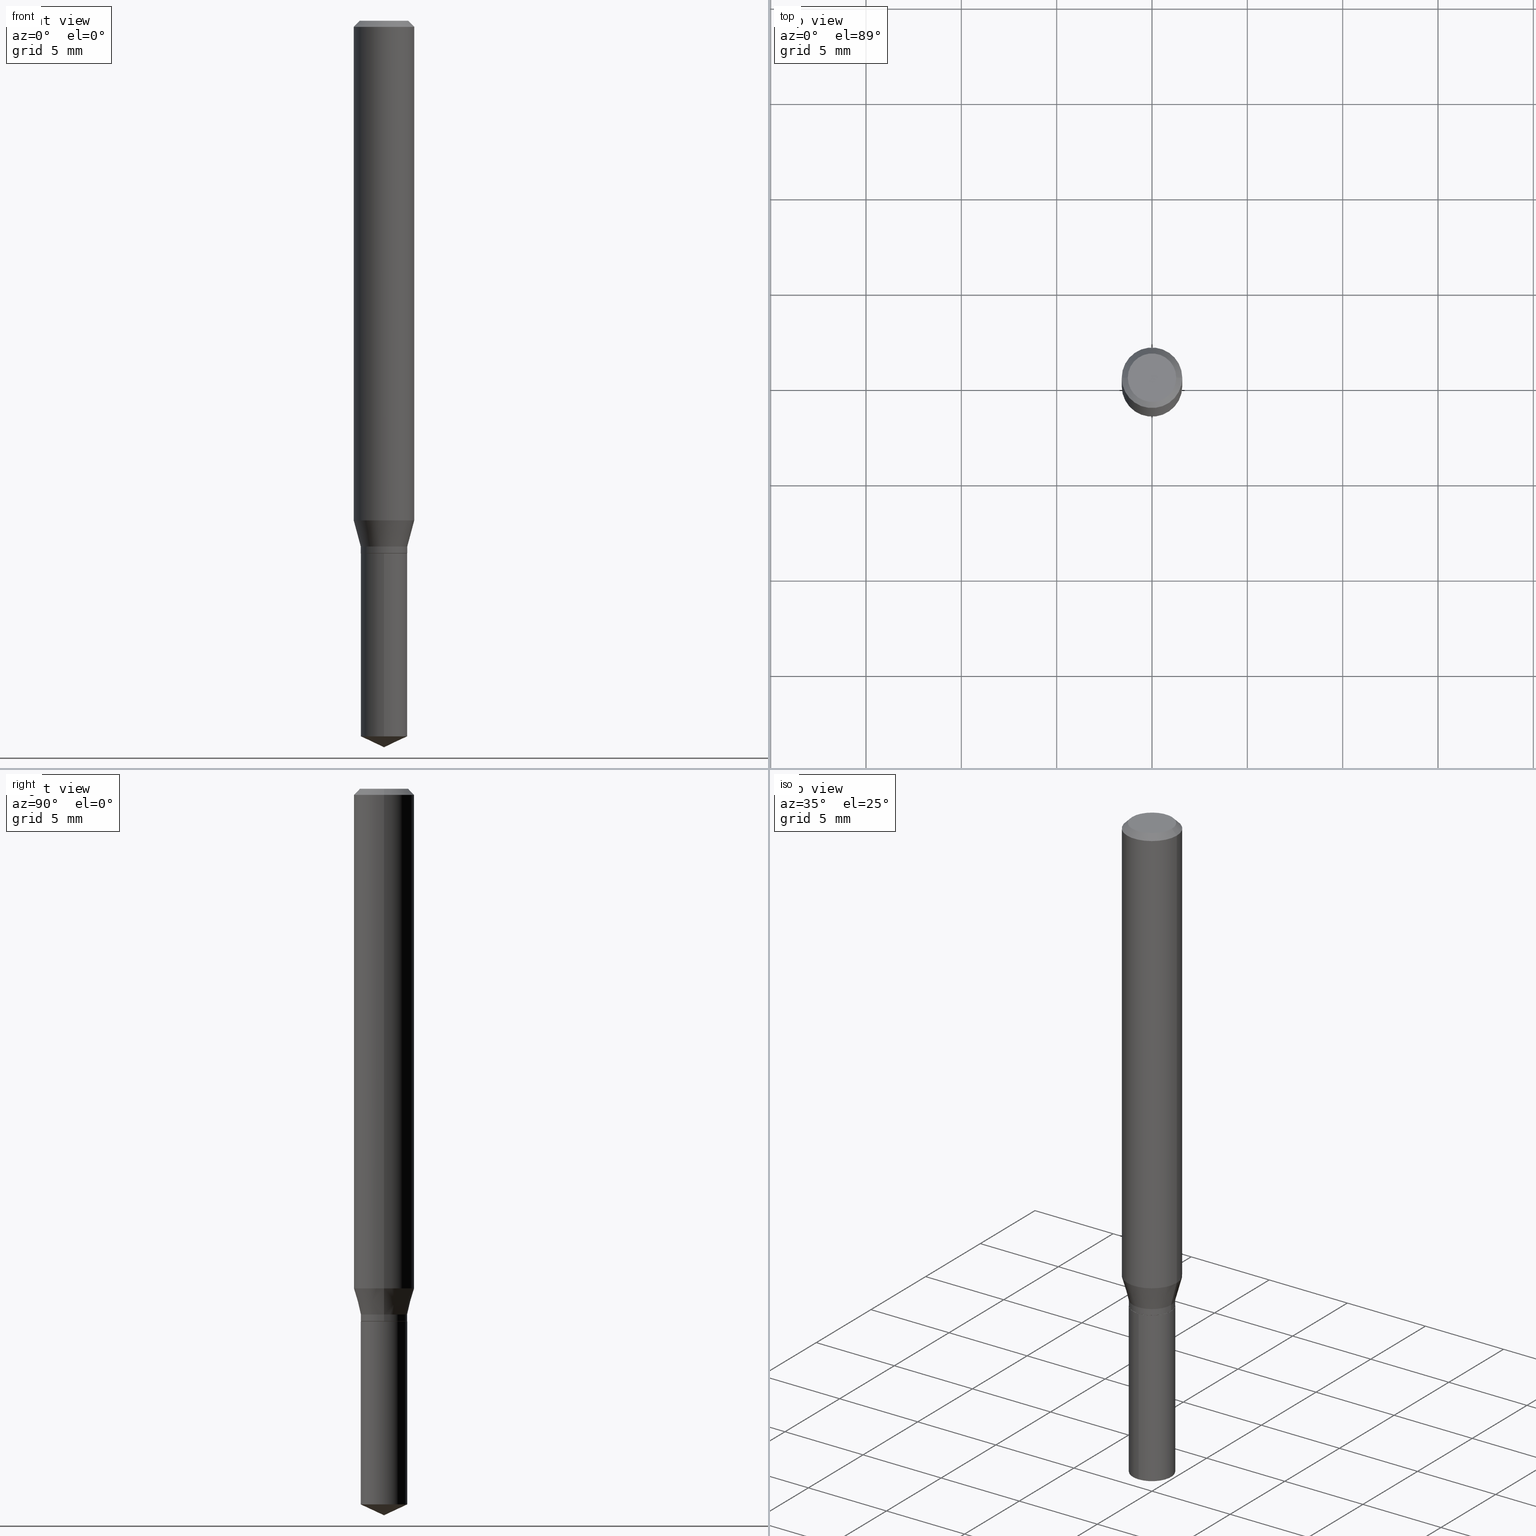
[diagram: canonical four-view strip — front | top / right | iso, engineering-drawing reading convention]
A machine part, canonical four-view strip (front | top / right | iso — engineering-drawing reading convention). The complete STEP part file that produces these views, byte-faithful:
ISO-10303-21;
HEADER;
FILE_DESCRIPTION (( 'STEP AP203' ),
    '1' );
FILE_NAME ('07372.STEP',
    '2024-04-23T20:49:41',
    ( '' ),
    ( '' ),
    'SwSTEP 2.0',
    'SolidWorks 2023',
    '' );
FILE_SCHEMA (( 'CONFIG_CONTROL_DESIGN' ));
ENDSEC;

DATA;
#1 = COORDINATED_UNIVERSAL_TIME_OFFSET ( 5, 0, .BEHIND. ) ;
#2 = CARTESIAN_POINT ( 'NONE',  ( 2.688792952400557567E-29, -3.838883732058038598E-15, -1.099499999999999922 ) ) ;
#3 = PERSON_AND_ORGANIZATION_ROLE ( 'creator' ) ;
#4 = DIRECTION ( 'NONE',  ( 1.000000000000000000, -6.982962677686266711E-15, 0.000000000000000000 ) ) ;
#5 = VECTOR ( 'NONE', #259, 39.37007874015748854 ) ;
#6 = CARTESIAN_POINT ( 'NONE',  ( -0.04800000000000000100, -3.449291628283270434E-15, -1.085600000000000120 ) ) ;
#7 = APPLICATION_PROTOCOL_DEFINITION ( 'international standard', 'config_control_design', 1994, #440 ) ;
#8 = ADVANCED_FACE ( 'NONE', ( #216 ), #410, .T. ) ;
#9 = AXIS2_PLACEMENT_3D ( 'NONE', #21, #396, #323 ) ;
#10 = ORIENTED_EDGE ( 'NONE', *, *, #348, .T. ) ;
#11 = VERTEX_POINT ( 'NONE', #244 ) ;
#12 = DIRECTION ( 'NONE',  ( -2.445399690415121530E-29, 3.491580316559632610E-15, 1.000000000000000000 ) ) ;
#13 = VECTOR ( 'NONE', #78, 39.37007874015747433 ) ;
#14 = APPROVAL_PERSON_ORGANIZATION ( #190, #386, #301 ) ;
#15 = CC_DESIGN_DATE_AND_TIME_ASSIGNMENT ( #111, #338, ( #206 ) ) ;
#16 = CONICAL_SURFACE ( 'NONE', #477, 84.42940631927483253, 1.134464013796318227 ) ;
#17 = CARTESIAN_POINT ( 'NONE',  ( 0.06250000000000012490, -4.037846715425012745E-15, -1.031485263290250920 ) ) ;
#18 = ORIENTED_EDGE ( 'NONE', *, *, #390, .T. ) ;
#19 = MANIFOLD_SOLID_BREP ( 'Body-Move/Copy2[1]', #355 ) ;
#20 = ORIENTED_EDGE ( 'NONE', *, *, #460, .T. ) ;
#21 = CARTESIAN_POINT ( 'NONE',  ( 0.000000000000000000, 0.000000000000000000, 0.000000000000000000 ) ) ;
#22 = ORIENTED_EDGE ( 'NONE', *, *, #183, .T. ) ;
#23 = ADVANCED_FACE ( 'NONE', ( #366 ), #176, .T. ) ;
#24 = CARTESIAN_POINT ( 'NONE',  ( 2.654800935994584637E-29, -3.790352141448118432E-15, -1.085600000000000120 ) ) ;
#25 = CARTESIAN_POINT ( 'NONE',  ( 0.06250000000000000000, -4.800786840909313294E-16, -0.01250000000000009090 ) ) ;
#26 = EDGE_LOOP ( 'NONE', ( #328, #255, #465, #204 ) ) ;
#27 = DIRECTION ( 'NONE',  ( 1.000000000000000000, -6.982962677686266711E-15, 0.000000000000000000 ) ) ;
#28 = AXIS2_PLACEMENT_3D ( 'NONE', #327, #377, #339 ) ;
#29 = DIRECTION ( 'NONE',  ( -2.445399690415121530E-29, 3.491580316559632610E-15, 1.000000000000000000 ) ) ;
#30 = ORIENTED_EDGE ( 'NONE', *, *, #319, .F. ) ;
#31 = DIRECTION ( 'NONE',  ( -2.445468806185136877E-29, 3.491481338843145188E-15, 1.000000000000000000 ) ) ;
#32 = DIRECTION ( 'NONE',  ( -6.982962677686267499E-15, -1.000000000000000000, 3.520397390770433360E-15 ) ) ;
#33 = ADVANCED_FACE ( 'NONE', ( #252 ), #189, .T. ) ;
#34 = PERSON_AND_ORGANIZATION ( #186, #94 ) ;
#35 = PLANE ( 'NONE',  #347 ) ;
#36 = DATE_AND_TIME ( #79, #205 ) ;
#37 = DIRECTION ( 'NONE',  ( 1.000000000000000000, -6.982962677686266711E-15, 4.876176775795935793E-29 ) ) ;
#38 = APPROVAL_STATUS ( 'not_yet_approved' ) ;
#39 = EDGE_CURVE ( 'NONE', #239, #57, #65, .T. ) ;
#40 = DIRECTION ( 'NONE',  ( 1.000000000000000000, -6.982962677686273021E-15, 0.000000000000000000 ) ) ;
#41 = CLOSED_SHELL ( 'NONE', ( #434, #140, #170, #310, #414, #23, #48, #107, #258, #89, #234, #147 ) ) ;
#42 = CIRCLE ( 'NONE', #219, 0.04800000000000000100 ) ;
#43 = CIRCLE ( 'NONE', #237, 0.04800000000000000100 ) ;
#44 = EDGE_LOOP ( 'NONE', ( #157, #278, #441, #96 ) ) ;
#45 = CARTESIAN_POINT ( 'NONE',  ( 3.893286209682126177E-47, -5.558580879666067980E-33, -1.592040838891559689E-18 ) ) ;
#46 = CYLINDRICAL_SURFACE ( 'NONE', #117, 0.04800000000000000100 ) ;
#47 = ORIENTED_EDGE ( 'NONE', *, *, #266, .F. ) ;
#48 = ADVANCED_FACE ( 'NONE', ( #209 ), #101, .T. ) ;
#49 = CARTESIAN_POINT ( 'NONE',  ( 2.522465035415971570E-29, -3.601411548069620286E-15, -1.031485263290250920 ) ) ;
#50 = DIRECTION ( 'NONE',  ( 1.000000000000000000, -6.982962677686265922E-15, 4.876176775795935793E-29 ) ) ;
#51 = LOCAL_TIME ( 16, 49, 41.00000000000000000, #265 ) ;
#52 = DIRECTION ( 'NONE',  ( -6.328713451373382000E-15, -0.9063077870366501587, 0.4226182617406989972 ) ) ;
#53 = AXIS2_PLACEMENT_3D ( 'NONE', #245, #215, #174 ) ;
#54 = DIRECTION ( 'NONE',  ( -2.445468806185136597E-29, 3.491481338843145583E-15, 1.000000000000000000 ) ) ;
#55 = EDGE_LOOP ( 'NONE', ( #280, #160, #98, #359 ) ) ;
#56 = DIRECTION ( 'NONE',  ( 1.000000000000000000, -6.982962677686272233E-15, 0.000000000000000000 ) ) ;
#57 = VERTEX_POINT ( 'NONE', #490 ) ;
#58 = EDGE_CURVE ( 'NONE', #308, #103, #115, .T. ) ;
#59 =( CONVERSION_BASED_UNIT ( 'INCH', #221 ) LENGTH_UNIT ( ) NAMED_UNIT ( #228 ) );
#60 = DIRECTION ( 'NONE',  ( 1.000000000000000000, -6.982962677686264344E-15, 0.000000000000000000 ) ) ;
#61 = EDGE_LOOP ( 'NONE', ( #22, #373, #317, #484 ) ) ;
#62 = CARTESIAN_POINT ( 'NONE',  ( 3.056836007731443167E-31, -4.364351673553963533E-17, -0.01250000000000009090 ) ) ;
#63 = CARTESIAN_POINT ( 'NONE',  ( 0.06250000000000000000, -4.724246415962603826E-16, -0.01250000000000009090 ) ) ;
#64 = PRODUCT_DEFINITION_FORMATION_WITH_SPECIFIED_SOURCE ( 'ANY', '', #483, .NOT_KNOWN. ) ;
#65 = LINE ( 'NONE', #222, #200 ) ;
#66 = CARTESIAN_POINT ( 'NONE',  ( 0.04800000000000000100, -3.351822085289408139E-16, 2.340564852382048984E-30 ) ) ;
#67 = DIRECTION ( 'NONE',  ( -6.982962677686265922E-15, -1.000000000000000000, 2.845674993400273939E-15 ) ) ;
#68 = DIRECTION ( 'NONE',  ( 1.000000000000000000, -6.982962677686273021E-15, 0.000000000000000000 ) ) ;
#69 = ADVANCED_FACE ( 'NONE', ( #380 ), #16, .T. ) ;
#70 = DIRECTION ( 'NONE',  ( -0.7071067811865451302, 2.468850131082231817E-15, -0.7071067811865499042 ) ) ;
#71 = APPROVAL_ROLE ( '' ) ;
#72 = CIRCLE ( 'NONE', #307, 0.06250000000000000000 ) ;
#73 = CARTESIAN_POINT ( 'NONE',  ( 3.056836007731443167E-31, -4.364351673553963533E-17, -0.01250000000000009090 ) ) ;
#74 = DATE_AND_TIME ( #295, #51 ) ;
#75 = EDGE_CURVE ( 'NONE', #324, #478, #415, .T. ) ;
#76 = DIRECTION ( 'NONE',  ( 1.000000000000000000, -6.982962677686264344E-15, 0.000000000000000000 ) ) ;
#77 = APPROVAL_STATUS ( 'not_yet_approved' ) ;
#78 = DIRECTION ( 'NONE',  ( -0.2588190451025214611, 5.211531920934551042E-15, 0.9659258262890682012 ) ) ;
#79 = CALENDAR_DATE ( 2024, 23, 4 ) ;
#80 = VECTOR ( 'NONE', #181, 39.37007874015748143 ) ;
#81 = AXIS2_PLACEMENT_3D ( 'NONE', #287, #393, #439 ) ;
#82 = VECTOR ( 'NONE', #90, 39.37007874015748854 ) ;
#83 = DIRECTION ( 'NONE',  ( -2.445468806185136597E-29, 3.491481338843145583E-15, 1.000000000000000000 ) ) ;
#84 = EDGE_CURVE ( 'NONE', #173, #324, #451, .T. ) ;
#85 = ORIENTED_EDGE ( 'NONE', *, *, #283, .T. ) ;
#86 = ORIENTED_EDGE ( 'NONE', *, *, #294, .T. ) ;
#87 = AXIS2_PLACEMENT_3D ( 'NONE', #485, #329, #132 ) ;
#88 = VECTOR ( 'NONE', #375, 39.37007874015748143 ) ;
#89 = ADVANCED_FACE ( 'NONE', ( #145 ), #35, .F. ) ;
#90 = DIRECTION ( 'NONE',  ( -0.7071067811865232589, 7.493145998870265808E-15, 0.7071067811865715536 ) ) ;
#91 = CARTESIAN_POINT ( 'NONE',  ( -0.06250000000000012490, -3.157322338219556487E-15, -1.031485263290250920 ) ) ;
#92 = ORIENTED_EDGE ( 'NONE', *, *, #342, .T. ) ;
#93 = LINE ( 'NONE', #309, #82 ) ;
#94 = ORGANIZATION ( 'UNSPECIFIED', 'UNSPECIFIED', '' ) ;
#95 = EDGE_CURVE ( 'NONE', #57, #352, #340, .T. ) ;
#96 = ORIENTED_EDGE ( 'NONE', *, *, #489, .F. ) ;
#97 = DIRECTION ( 'NONE',  ( -2.445468806185136597E-29, 3.491481338843145583E-15, 1.000000000000000000 ) ) ;
#98 = ORIENTED_EDGE ( 'NONE', *, *, #183, .F. ) ;
#99 = DIRECTION ( 'NONE',  ( -2.445468806185136597E-29, 3.491481338843145583E-15, 1.000000000000000000 ) ) ;
#100 = DIRECTION ( 'NONE',  ( 1.000000000000000000, -6.982962677686266711E-15, 4.876176775795935232E-29 ) ) ;
#101 = CONICAL_SURFACE ( 'NONE', #231, 0.04800000000000000100, 0.2617993877991501295 ) ;
#102 = AXIS2_PLACEMENT_3D ( 'NONE', #332, #54, #438 ) ;
#103 = VERTEX_POINT ( 'NONE', #264 ) ;
#104 =( LENGTH_UNIT ( ) NAMED_UNIT ( * ) SI_UNIT ( $, .METRE. ) );
#105 = CIRCLE ( 'NONE', #369, 0.04800000000000000100 ) ;
#106 = ORIENTED_EDGE ( 'NONE', *, *, #442, .T. ) ;
#107 = ADVANCED_FACE ( 'NONE', ( #453 ), #346, .T. ) ;
#108 = DATE_AND_TIME ( #341, #120 ) ;
#109 = APPROVAL ( #77, 'UNSPECIFIED' ) ;
#110 = CARTESIAN_POINT ( 'NONE',  ( 2.522465035415971570E-29, -3.601411548069620286E-15, -1.031485263290250920 ) ) ;
#111 = DATE_AND_TIME ( #454, #158 ) ;
#112 = CONICAL_SURFACE ( 'NONE', #389, 0.04749999999999999362, 0.7853981633974141952 ) ;
#113 = DIRECTION ( 'NONE',  ( -2.445468806185136597E-29, 3.491481338843145583E-15, 1.000000000000000000 ) ) ;
#114 = APPROVAL_ROLE ( '' ) ;
#115 = LINE ( 'NONE', #449, #5 ) ;
#116 = EDGE_LOOP ( 'NONE', ( #472, #370, #20, #467 ) ) ;
#117 = AXIS2_PLACEMENT_3D ( 'NONE', #201, #12, #162 ) ;
#118 = EDGE_CURVE ( 'NONE', #324, #220, #406, .T. ) ;
#119 = EDGE_CURVE ( 'NONE', #401, #103, #426, .T. ) ;
#120 = LOCAL_TIME ( 16, 49, 41.00000000000000000, #416 ) ;
#121 = CARTESIAN_POINT ( 'NONE',  ( 2.690015686803650369E-29, -3.840629472727460101E-15, -1.100000000000000089 ) ) ;
#122 = AXIS2_PLACEMENT_3D ( 'NONE', #2, #256, #261 ) ;
#123 = CARTESIAN_POINT ( 'NONE',  ( 0.04749999999999999362, -4.172320199917558401E-15, -1.100000000000000089 ) ) ;
#124 = FACE_OUTER_BOUND ( 'NONE', #475, .T. ) ;
#125 = EDGE_LOOP ( 'NONE', ( #241, #247 ) ) ;
#126 = DIRECTION ( 'NONE',  ( -2.445468806185136877E-29, 3.491481338843145188E-15, 1.000000000000000000 ) ) ;
#127 = FACE_OUTER_BOUND ( 'NONE', #125, .T. ) ;
#128 = ORIENTED_EDGE ( 'NONE', *, *, #84, .F. ) ;
#129 = AXIS2_PLACEMENT_3D ( 'NONE', #297, #455, #420 ) ;
#130 = AXIS2_PLACEMENT_3D ( 'NONE', #443, #395, #405 ) ;
#131 = VERTEX_POINT ( 'NONE', #154 ) ;
#132 = DIRECTION ( 'NONE',  ( 1.000000000000000000, -6.982962677686265922E-15, 4.875957971899673662E-29 ) ) ;
#133 = VERTEX_POINT ( 'NONE', #300 ) ;
#134 = DIRECTION ( 'NONE',  ( 2.445399690415121250E-29, -3.491580316559632610E-15, -1.000000000000000000 ) ) ;
#135 = CARTESIAN_POINT ( 'NONE',  ( 0.000000000000000000, 0.000000000000000000, 0.000000000000000000 ) ) ;
#136 = DIRECTION ( 'NONE',  ( -2.445399690415121810E-29, 3.491580316559632610E-15, 1.000000000000000000 ) ) ;
#137 = EDGE_LOOP ( 'NONE', ( #159, #30 ) ) ;
#138 = LINE ( 'NONE', #267, #446 ) ;
#139 = ORIENTED_EDGE ( 'NONE', *, *, #372, .T. ) ;
#140 = ADVANCED_FACE ( 'NONE', ( #418 ), #464, .T. ) ;
#141 = CARTESIAN_POINT ( 'NONE',  ( 3.668252923656895710E-29, -5.237152723863177100E-15, -1.500000000000000222 ) ) ;
#142 = CC_DESIGN_APPROVAL ( #386, ( #64 ) ) ;
#143 = DIRECTION ( 'NONE',  ( 1.000000000000000000, -6.982962677686272233E-15, 0.000000000000000000 ) ) ;
#144 = AXIS2_PLACEMENT_3D ( 'NONE', #49, #99, #60 ) ;
#145 = FACE_OUTER_BOUND ( 'NONE', #202, .T. ) ;
#146 = PERSON_AND_ORGANIZATION_ROLE ( 'creator' ) ;
#147 = ADVANCED_FACE ( 'NONE', ( #457 ), #112, .T. ) ;
#148 = CARTESIAN_POINT ( 'NONE',  ( -3.351822085289138941E-16, -0.04800000000000383821, -1.099999999999999867 ) ) ;
#149 = DATE_AND_TIME ( #262, #486 ) ;
#150 = CARTESIAN_POINT ( 'NONE',  ( 0.000000000000000000, 0.000000000000000000, 0.000000000000000000 ) ) ;
#151 = PERSON_AND_ORGANIZATION ( #186, #94 ) ;
#152 = CONICAL_SURFACE ( 'NONE', #81, 0.04800000000000000100, 0.2617993877991501295 ) ;
#153 = AXIS2_PLACEMENT_3D ( 'NONE', #435, #362, #50 ) ;
#154 = CARTESIAN_POINT ( 'NONE',  ( 0.04800000000000000100, -4.125534349977059739E-15, -1.085600000000000120 ) ) ;
#155 = APPROVAL_DATE_TIME ( #74, #386 ) ;
#156 = EDGE_CURVE ( 'NONE', #220, #168, #303, .T. ) ;
#157 = ORIENTED_EDGE ( 'NONE', *, *, #480, .F. ) ;
#158 = LOCAL_TIME ( 16, 49, 41.00000000000000000, #381 ) ;
#159 = ORIENTED_EDGE ( 'NONE', *, *, #299, .F. ) ;
#160 = ORIENTED_EDGE ( 'NONE', *, *, #360, .T. ) ;
#161 = EDGE_CURVE ( 'NONE', #11, #478, #333, .T. ) ;
#162 = DIRECTION ( 'NONE',  ( -6.982962677686265922E-15, -1.000000000000000000, 2.845674993400273939E-15 ) ) ;
#163 = AXIS2_PLACEMENT_3D ( 'NONE', #243, #279, #432 ) ;
#164 = CARTESIAN_POINT ( 'NONE',  ( 2.688792952400557567E-29, -3.838883732058038598E-15, -1.099499999999999922 ) ) ;
#165 = VECTOR ( 'NONE', #325, 39.37007874015748143 ) ;
#166 = ORIENTED_EDGE ( 'NONE', *, *, #460, .F. ) ;
#167 = ORIENTED_EDGE ( 'NONE', *, *, #95, .F. ) ;
#168 = VERTEX_POINT ( 'NONE', #25 ) ;
#169 = DIRECTION ( 'NONE',  ( 6.439704144417036664E-15, 0.9063077870366530453, 0.4226182617406927244 ) ) ;
#170 = ADVANCED_FACE ( 'NONE', ( #124 ), #246, .T. ) ;
#171 = VERTEX_POINT ( 'NONE', #409 ) ;
#172 = CARTESIAN_POINT ( 'NONE',  ( 0.04800000000000000100, -4.125534349977059739E-15, -1.085600000000000120 ) ) ;
#173 = VERTEX_POINT ( 'NONE', #194 ) ;
#174 = DIRECTION ( 'NONE',  ( 1.000000000000000000, -6.982962677686273021E-15, 0.000000000000000000 ) ) ;
#175 = VECTOR ( 'NONE', #70, 39.37007874015748143 ) ;
#176 = CYLINDRICAL_SURFACE ( 'NONE', #271, 0.04800000000000000100 ) ;
#177 = LINE ( 'NONE', #318, #356 ) ;
#178 = ORIENTED_EDGE ( 'NONE', *, *, #118, .T. ) ;
#179 = EDGE_CURVE ( 'NONE', #352, #171, #43, .T. ) ;
#180 = VERTEX_POINT ( 'NONE', #274 ) ;
#181 = DIRECTION ( 'NONE',  ( -2.445399690415121810E-29, 3.491580316559632610E-15, 1.000000000000000000 ) ) ;
#182 = DIRECTION ( 'NONE',  ( -2.445399690415121530E-29, 3.491580316559632610E-15, 1.000000000000000000 ) ) ;
#183 = EDGE_CURVE ( 'NONE', #131, #173, #383, .T. ) ;
#184 = DIRECTION ( 'NONE',  ( -1.000000000000000000, 6.982962677686265922E-15, -4.876176775795935793E-29 ) ) ;
#185 = PERSON_AND_ORGANIZATION_ROLE ( 'design_owner' ) ;
#186 = PERSON ( 'UNSPECIFIED', 'UNSPECIFIED', 'UNSPECIFIED', ('UNSPECIFIED'), ('UNSPECIFIED'), ('UNSPECIFIED') ) ;
#187 = APPLICATION_CONTEXT ( 'configuration controlled 3d designs of mechanical parts and assemblies' ) ;
#188 = DIRECTION ( 'NONE',  ( -2.445468806185136597E-29, 3.491481338843145583E-15, 1.000000000000000000 ) ) ;
#189 = CONICAL_SURFACE ( 'NONE', #130, 84.42940631927483253, 1.134464013796318227 ) ;
#190 = PERSON_AND_ORGANIZATION ( #186, #94 ) ;
#191 = APPROVAL_PERSON_ORGANIZATION ( #382, #423, #71 ) ;
#192 = CC_DESIGN_PERSON_AND_ORGANIZATION_ASSIGNMENT ( #193, #304, ( #206 ) ) ;
#193 = PERSON_AND_ORGANIZATION ( #186, #94 ) ;
#194 = CARTESIAN_POINT ( 'NONE',  ( -0.04800000000000000100, -3.473557423588230517E-15, -1.085600000000000120 ) ) ;
#195 = ORIENTED_EDGE ( 'NONE', *, *, #348, .F. ) ;
#196 = ORIENTED_EDGE ( 'NONE', *, *, #39, .F. ) ;
#197 = AXIS2_PLACEMENT_3D ( 'NONE', #387, #306, #427 ) ;
#198 = EDGE_CURVE ( 'NONE', #103, #401, #105, .T. ) ;
#199 = EDGE_LOOP ( 'NONE', ( #351, #286, #470, #392 ) ) ;
#200 = VECTOR ( 'NONE', #52, 39.37007874015748143 ) ;
#201 = CARTESIAN_POINT ( 'NONE',  ( 2.690015686803650369E-29, -3.840629472727460101E-15, -1.100000000000000089 ) ) ;
#202 = EDGE_LOOP ( 'NONE', ( #18, #139 ) ) ;
#203 = CARTESIAN_POINT ( 'NONE',  ( 2.690015686803650369E-29, -3.840629472727460101E-15, -1.100000000000000089 ) ) ;
#204 = ORIENTED_EDGE ( 'NONE', *, *, #119, .F. ) ;
#205 = LOCAL_TIME ( 16, 49, 41.00000000000000000, #344 ) ;
#206 = SECURITY_CLASSIFICATION ( '', '', #296 ) ;
#207 = DIRECTION ( 'NONE',  ( -6.982962677686265922E-15, -1.000000000000000000, 5.691349986800547879E-15 ) ) ;
#208 = PRODUCT_DEFINITION ( 'UNKNOWN', '', #64, #321 ) ;
#209 = FACE_OUTER_BOUND ( 'NONE', #275, .T. ) ;
#210 = MECHANICAL_CONTEXT ( 'NONE', #187, 'mechanical' ) ;
#211 = ORIENTED_EDGE ( 'NONE', *, *, #75, .F. ) ;
#212 = ORIENTED_EDGE ( 'NONE', *, *, #353, .F. ) ;
#213 =( NAMED_UNIT ( * ) PLANE_ANGLE_UNIT ( ) SI_UNIT ( $, .RADIAN. ) );
#214 = ORIENTED_EDGE ( 'NONE', *, *, #156, .F. ) ;
#215 = DIRECTION ( 'NONE',  ( -2.445468806185136597E-29, 3.491481338843145583E-15, 1.000000000000000000 ) ) ;
#216 = FACE_OUTER_BOUND ( 'NONE', #397, .T. ) ;
#217 = ADVANCED_FACE ( 'NONE', ( #127 ), #431, .F. ) ;
#218 = CARTESIAN_POINT ( 'NONE',  ( 2.690015686803650369E-29, -3.840629472727460101E-15, -1.100000000000000089 ) ) ;
#219 = AXIS2_PLACEMENT_3D ( 'NONE', #285, #361, #248 ) ;
#220 = VERTEX_POINT ( 'NONE', #17 ) ;
#221 = LENGTH_MEASURE_WITH_UNIT ( LENGTH_MEASURE( 0.02539999999999999897 ), #104 );
#222 = CARTESIAN_POINT ( 'NONE',  ( 3.668099535622682155E-29, -5.237370474839448718E-15, -1.500000000000000222 ) ) ;
#223 = CARTESIAN_POINT ( 'NONE',  ( -9.260740279983036507E-28, 1.322265303911854087E-13, 37.87007874015748143 ) ) ;
#224 = CARTESIAN_POINT ( 'NONE',  ( 1.946643104841063088E-47, -2.779290439833033990E-33, -7.960204194457798443E-19 ) ) ;
#225 = DIRECTION ( 'NONE',  ( 2.445468806185136597E-29, -3.491481338843145583E-15, -1.000000000000000000 ) ) ;
#226 = PERSON_AND_ORGANIZATION_ROLE ( 'design_supplier' ) ;
#227 = CARTESIAN_POINT ( 'NONE',  ( 2.690015686803650369E-29, -3.840629472727460101E-15, -1.100000000000000089 ) ) ;
#228 = DIMENSIONAL_EXPONENTS ( 1.000000000000000000, 0.000000000000000000, 0.000000000000000000, 0.000000000000000000, 0.000000000000000000, 0.000000000000000000, 0.000000000000000000 ) ;
#229 = PERSON_AND_ORGANIZATION ( #186, #94 ) ;
#230 = CC_DESIGN_PERSON_AND_ORGANIZATION_ASSIGNMENT ( #151, #3, ( #208 ) ) ;
#231 = AXIS2_PLACEMENT_3D ( 'NONE', #421, #488, #143 ) ;
#232 = DIRECTION ( 'NONE',  ( 2.438088387897960049E-29, -3.491481338843145188E-15, -1.000000000000000000 ) ) ;
#233 = CONICAL_SURFACE ( 'NONE', #163, 0.06250000000000000000, 0.7853981633974449483 ) ;
#234 = ADVANCED_FACE ( 'NONE', ( #320 ), #314, .F. ) ;
#235 = ORIENTED_EDGE ( 'NONE', *, *, #156, .T. ) ;
#236 = CIRCLE ( 'NONE', #87, 0.04999999999999999584 ) ;
#237 = AXIS2_PLACEMENT_3D ( 'NONE', #218, #368, #358 ) ;
#238 = FACE_OUTER_BOUND ( 'NONE', #44, .T. ) ;
#239 = VERTEX_POINT ( 'NONE', #473 ) ;
#240 = LINE ( 'NONE', #63, #165 ) ;
#241 = ORIENTED_EDGE ( 'NONE', *, *, #179, .T. ) ;
#242 = EDGE_CURVE ( 'NONE', #133, #168, #240, .T. ) ;
#243 = CARTESIAN_POINT ( 'NONE',  ( 3.056836007731443167E-31, -4.364351673553963533E-17, -0.01250000000000009090 ) ) ;
#244 = CARTESIAN_POINT ( 'NONE',  ( -0.04999999999999999584, 3.709698922520826725E-16, -1.592040838894077649E-18 ) ) ;
#245 = CARTESIAN_POINT ( 'NONE',  ( 2.690015686803650369E-29, -3.840629472727460101E-15, -1.100000000000000089 ) ) ;
#246 = CYLINDRICAL_SURFACE ( 'NONE', #28, 0.06250000000000006939 ) ;
#247 = ORIENTED_EDGE ( 'NONE', *, *, #489, .T. ) ;
#248 = DIRECTION ( 'NONE',  ( -6.982962677686265922E-15, -1.000000000000000000, 2.845674993400273939E-15 ) ) ;
#249 = DIRECTION ( 'NONE',  ( 6.982962677686265922E-15, 1.000000000000000000, -3.491580316559632610E-15 ) ) ;
#250 = ORIENTED_EDGE ( 'NONE', *, *, #342, .F. ) ;
#251 = EDGE_LOOP ( 'NONE', ( #481, #331, #253, #195 ) ) ;
#252 = FACE_OUTER_BOUND ( 'NONE', #290, .T. ) ;
#253 = ORIENTED_EDGE ( 'NONE', *, *, #398, .T. ) ;
#254 = ORIENTED_EDGE ( 'NONE', *, *, #118, .F. ) ;
#255 = ORIENTED_EDGE ( 'NONE', *, *, #319, .T. ) ;
#256 = DIRECTION ( 'NONE',  ( -2.445468806185136597E-29, 3.491481338843145583E-15, 1.000000000000000000 ) ) ;
#257 = SHAPE_DEFINITION_REPRESENTATION ( #391, #388 ) ;
#258 = ADVANCED_FACE ( 'NONE', ( #316 ), #233, .T. ) ;
#259 = DIRECTION ( 'NONE',  ( 0.7071067811865232589, -2.468850131082003836E-15, 0.7071067811865715536 ) ) ;
#260 = PERSON_AND_ORGANIZATION ( #186, #94 ) ;
#261 = DIRECTION ( 'NONE',  ( 1.000000000000000000, -6.982962677686272233E-15, 0.000000000000000000 ) ) ;
#262 = CALENDAR_DATE ( 2024, 23, 4 ) ;
#263 = AXIS2_PLACEMENT_3D ( 'NONE', #73, #225, #268 ) ;
#264 = CARTESIAN_POINT ( 'NONE',  ( 0.04800000000000000100, -4.174065940586979116E-15, -1.099499999999999922 ) ) ;
#265 = COORDINATED_UNIVERSAL_TIME_OFFSET ( 5, 0, .BEHIND. ) ;
#266 = EDGE_CURVE ( 'NONE', #180, #57, #448, .T. ) ;
#267 = CARTESIAN_POINT ( 'NONE',  ( -0.04800000000000000100, 3.410605131648480963E-16, -2.361088843322354800E-30 ) ) ;
#268 = DIRECTION ( 'NONE',  ( -1.000000000000000000, 6.982962677686266711E-15, 0.000000000000000000 ) ) ;
#269 = CARTESIAN_POINT ( 'NONE',  ( 3.056836007731443167E-31, -4.364351673553963533E-17, -0.01250000000000009090 ) ) ;
#270 = CIRCLE ( 'NONE', #281, 0.04999999999999999584 ) ;
#271 = AXIS2_PLACEMENT_3D ( 'NONE', #135, #288, #100 ) ;
#272 = DIRECTION ( 'NONE',  ( 1.000000000000000000, -6.982962677686265922E-15, 4.875957971899673662E-29 ) ) ;
#273 =( GEOMETRIC_REPRESENTATION_CONTEXT ( 3 ) GLOBAL_UNCERTAINTY_ASSIGNED_CONTEXT ( ( #365 ) ) GLOBAL_UNIT_ASSIGNED_CONTEXT ( ( #59, #213, #403 ) ) REPRESENTATION_CONTEXT ( 'NONE', 'WORKASPACE' ) );
#274 = CARTESIAN_POINT ( 'NONE',  ( 3.410605131648841867E-16, 0.04799999999999484540, -1.477617232408560799 ) ) ;
#275 = EDGE_LOOP ( 'NONE', ( #128, #10, #106, #254 ) ) ;
#276 = CC_DESIGN_PERSON_AND_ORGANIZATION_ASSIGNMENT ( #229, #146, ( #64 ) ) ;
#277 = DIRECTION ( 'NONE',  ( 1.000000000000000000, -6.982962677686273021E-15, 0.000000000000000000 ) ) ;
#278 = ORIENTED_EDGE ( 'NONE', *, *, #266, .T. ) ;
#279 = DIRECTION ( 'NONE',  ( 2.445468806185136597E-29, -3.491481338843145583E-15, -1.000000000000000000 ) ) ;
#280 = ORIENTED_EDGE ( 'NONE', *, *, #198, .T. ) ;
#281 = AXIS2_PLACEMENT_3D ( 'NONE', #45, #461, #272 ) ;
#282 = DIRECTION ( 'NONE',  ( -2.445468806185136597E-29, 3.491481338843145583E-15, 1.000000000000000000 ) ) ;
#283 = EDGE_CURVE ( 'NONE', #312, #401, #93, .T. ) ;
#284 = CARTESIAN_POINT ( 'NONE',  ( 2.690015686803650369E-29, -3.840629472727460101E-15, -1.100000000000000089 ) ) ;
#285 = CARTESIAN_POINT ( 'NONE',  ( 2.690015686803650369E-29, -3.840629472727460101E-15, -1.100000000000000089 ) ) ;
#286 = ORIENTED_EDGE ( 'NONE', *, *, #390, .F. ) ;
#287 = CARTESIAN_POINT ( 'NONE',  ( 2.654800935994584637E-29, -3.790352141448118432E-15, -1.085600000000000120 ) ) ;
#288 = DIRECTION ( 'NONE',  ( -2.445468806185136597E-29, 3.491481338843145583E-15, 1.000000000000000000 ) ) ;
#289 = FACE_OUTER_BOUND ( 'NONE', #363, .T. ) ;
#290 = EDGE_LOOP ( 'NONE', ( #430, #399, #47 ) ) ;
#291 = DIRECTION ( 'NONE',  ( 0.2588190451025214611, 1.565188264969621573E-15, 0.9659258262890682012 ) ) ;
#292 = AXIS2_PLACEMENT_3D ( 'NONE', #466, #29, #207 ) ;
#293 = CARTESIAN_POINT ( 'NONE',  ( -0.06250000000000006939, 4.440892098500631092E-16, -3.074334431409319267E-30 ) ) ;
#294 = EDGE_CURVE ( 'NONE', #220, #324, #357, .T. ) ;
#295 = CALENDAR_DATE ( 2024, 23, 4 ) ;
#296 = SECURITY_CLASSIFICATION_LEVEL ( 'unclassified' ) ;
#297 = CARTESIAN_POINT ( 'NONE',  ( 3.613440750030958886E-29, -5.159110368598914660E-15, -1.477617232408560355 ) ) ;
#298 = AXIS2_PLACEMENT_3D ( 'NONE', #269, #83, #4 ) ;
#299 = EDGE_CURVE ( 'NONE', #308, #312, #487, .T. ) ;
#300 = CARTESIAN_POINT ( 'NONE',  ( 0.04999999999999999584, -4.077247707424184705E-16, -1.592040838888913461E-18 ) ) ;
#301 = APPROVAL_ROLE ( '' ) ;
#302 = CARTESIAN_POINT ( 'NONE',  ( -3.351822085289138941E-16, -0.04800000000000383821, -1.099999999999999867 ) ) ;
#303 = LINE ( 'NONE', #422, #445 ) ;
#304 = PERSON_AND_ORGANIZATION_ROLE ( 'classification_officer' ) ;
#305 = PERSON_AND_ORGANIZATION ( #186, #94 ) ;
#306 = DIRECTION ( 'NONE',  ( -2.445468806185136597E-29, 3.491481338843145583E-15, 1.000000000000000000 ) ) ;
#307 = AXIS2_PLACEMENT_3D ( 'NONE', #62, #97, #27 ) ;
#308 = VERTEX_POINT ( 'NONE', #123 ) ;
#309 = CARTESIAN_POINT ( 'NONE',  ( -0.04749999999999999362, -3.503121673241413002E-15, -1.100000000000000089 ) ) ;
#310 = ADVANCED_FACE ( 'NONE', ( #479 ), #152, .T. ) ;
#311 = AXIS2_PLACEMENT_3D ( 'NONE', #110, #188, #76 ) ;
#312 = VERTEX_POINT ( 'NONE', #404 ) ;
#313 = AXIS2_PLACEMENT_3D ( 'NONE', #24, #282, #469 ) ;
#314 = PLANE ( 'NONE',  #153 ) ;
#315 = ORIENTED_EDGE ( 'NONE', *, *, #480, .T. ) ;
#316 = FACE_OUTER_BOUND ( 'NONE', #199, .T. ) ;
#317 = ORIENTED_EDGE ( 'NONE', *, *, #294, .F. ) ;
#318 = CARTESIAN_POINT ( 'NONE',  ( 3.410605131648748683E-16, 0.04799999999999615685, -1.100000000000000089 ) ) ;
#319 = EDGE_CURVE ( 'NONE', #312, #308, #429, .T. ) ;
#320 = FACE_OUTER_BOUND ( 'NONE', #137, .T. ) ;
#321 = DESIGN_CONTEXT ( 'detailed design', #440, 'design' ) ;
#322 = ORIENTED_EDGE ( 'NONE', *, *, #428, .T. ) ;
#323 = DIRECTION ( 'NONE',  ( 1.000000000000000000, 0.000000000000000000, 0.000000000000000000 ) ) ;
#324 = VERTEX_POINT ( 'NONE', #91 ) ;
#325 = DIRECTION ( 'NONE',  ( 0.7071067811865451302, -7.319954787623248157E-15, -0.7071067811865499042 ) ) ;
#326 = AXIS2_PLACEMENT_3D ( 'NONE', #150, #343, #37 ) ;
#327 = CARTESIAN_POINT ( 'NONE',  ( 0.000000000000000000, 0.000000000000000000, 0.000000000000000000 ) ) ;
#328 = ORIENTED_EDGE ( 'NONE', *, *, #283, .F. ) ;
#329 = DIRECTION ( 'NONE',  ( -2.445468806185136597E-29, 3.491481338843145583E-15, 1.000000000000000000 ) ) ;
#330 = EDGE_LOOP ( 'NONE', ( #211, #178, #235, #212 ) ) ;
#331 = ORIENTED_EDGE ( 'NONE', *, *, #119, .T. ) ;
#332 = CARTESIAN_POINT ( 'NONE',  ( 0.000000000000000000, 0.000000000000000000, 0.000000000000000000 ) ) ;
#333 = LINE ( 'NONE', #412, #175 ) ;
#334 = PRODUCT_RELATED_PRODUCT_CATEGORY ( 'detail', '', ( #483 ) ) ;
#335 = CARTESIAN_POINT ( 'NONE',  ( 2.690015686803650369E-29, -3.840629472727460101E-15, -1.100000000000000089 ) ) ;
#336 = ORIENTED_EDGE ( 'NONE', *, *, #58, .F. ) ;
#337 = CC_DESIGN_SECURITY_CLASSIFICATION ( #206, ( #64 ) ) ;
#338 = DATE_TIME_ROLE ( 'classification_date' ) ;
#339 = DIRECTION ( 'NONE',  ( 1.000000000000000000, -6.982962677686266711E-15, 4.876176775795935793E-29 ) ) ;
#340 = LINE ( 'NONE', #148, #80 ) ;
#341 = CALENDAR_DATE ( 2024, 23, 4 ) ;
#342 = EDGE_CURVE ( 'NONE', #57, #180, #417, .T. ) ;
#343 = DIRECTION ( 'NONE',  ( -2.445468806185136597E-29, 3.491481338843145583E-15, 1.000000000000000000 ) ) ;
#344 = COORDINATED_UNIVERSAL_TIME_OFFSET ( 5, 0, .BEHIND. ) ;
#345 = CIRCLE ( 'NONE', #197, 0.04800000000000000100 ) ;
#346 = CYLINDRICAL_SURFACE ( 'NONE', #326, 0.06250000000000006939 ) ;
#347 = AXIS2_PLACEMENT_3D ( 'NONE', #224, #232, #184 ) ;
#348 = EDGE_CURVE ( 'NONE', #173, #131, #345, .T. ) ;
#349 = MANIFOLD_SOLID_BREP ( 'Body-Move/Copy2[2]', #41 ) ;
#350 = AXIS2_PLACEMENT_3D ( 'NONE', #284, #437, #67 ) ;
#351 = ORIENTED_EDGE ( 'NONE', *, *, #242, .F. ) ;
#352 = VERTEX_POINT ( 'NONE', #302 ) ;
#353 = EDGE_CURVE ( 'NONE', #478, #168, #459, .T. ) ;
#354 = DIRECTION ( 'NONE',  ( -2.445468806185136597E-29, 3.491481338843145583E-15, 1.000000000000000000 ) ) ;
#355 = CLOSED_SHELL ( 'NONE', ( #8, #69, #33, #379, #217 ) ) ;
#356 = VECTOR ( 'NONE', #136, 39.37007874015748143 ) ;
#357 = CIRCLE ( 'NONE', #144, 0.06250000000000012490 ) ;
#358 = DIRECTION ( 'NONE',  ( -6.982962677686265922E-15, -1.000000000000000000, 2.845674993400273939E-15 ) ) ;
#359 = ORIENTED_EDGE ( 'NONE', *, *, #398, .F. ) ;
#360 = EDGE_CURVE ( 'NONE', #401, #173, #138, .T. ) ;
#361 = DIRECTION ( 'NONE',  ( -2.445399690415121530E-29, 3.491580316559632610E-15, 1.000000000000000000 ) ) ;
#362 = DIRECTION ( 'NONE',  ( -2.438088387897960049E-29, 3.491481338843145188E-15, 1.000000000000000000 ) ) ;
#363 = EDGE_LOOP ( 'NONE', ( #447, #85, #463, #336 ) ) ;
#364 = DIRECTION ( 'NONE',  ( -2.445468806185136597E-29, 3.491481338843145583E-15, 1.000000000000000000 ) ) ;
#365 = UNCERTAINTY_MEASURE_WITH_UNIT (LENGTH_MEASURE( 1.000000000000000082E-05 ), #59, 'distance_accuracy_value', 'NONE');
#366 = FACE_OUTER_BOUND ( 'NONE', #251, .T. ) ;
#367 = CARTESIAN_POINT ( 'NONE',  ( -0.04800000000000000100, -3.473557423588230517E-15, -1.099499999999999922 ) ) ;
#368 = DIRECTION ( 'NONE',  ( -2.445399690415121530E-29, 3.491580316559632610E-15, 1.000000000000000000 ) ) ;
#369 = AXIS2_PLACEMENT_3D ( 'NONE', #164, #364, #56 ) ;
#370 = ORIENTED_EDGE ( 'NONE', *, *, #242, .T. ) ;
#371 = DIRECTION ( 'NONE',  ( -2.445468806185136877E-29, 3.491481338843145188E-15, 1.000000000000000000 ) ) ;
#372 = EDGE_CURVE ( 'NONE', #133, #11, #270, .T. ) ;
#373 = ORIENTED_EDGE ( 'NONE', *, *, #84, .T. ) ;
#374 = LINE ( 'NONE', #141, #384 ) ;
#375 = DIRECTION ( 'NONE',  ( -2.445468806185136877E-29, 3.491481338843145188E-15, 1.000000000000000000 ) ) ;
#376 = APPROVAL_PERSON_ORGANIZATION ( #34, #109, #114 ) ;
#377 = DIRECTION ( 'NONE',  ( -2.445468806185136597E-29, 3.491481338843145583E-15, 1.000000000000000000 ) ) ;
#378 = DATE_TIME_ROLE ( 'creation_date' ) ;
#379 = ADVANCED_FACE ( 'NONE', ( #238 ), #46, .T. ) ;
#380 = FACE_OUTER_BOUND ( 'NONE', #436, .T. ) ;
#381 = COORDINATED_UNIVERSAL_TIME_OFFSET ( 5, 0, .BEHIND. ) ;
#382 = PERSON_AND_ORGANIZATION ( #186, #94 ) ;
#383 = CIRCLE ( 'NONE', #313, 0.04800000000000000100 ) ;
#384 = VECTOR ( 'NONE', #169, 39.37007874015748854 ) ;
#385 = AXIS2_PLACEMENT_3D ( 'NONE', #121, #134, #249 ) ;
#386 = APPROVAL ( #413, 'UNSPECIFIED' ) ;
#387 = CARTESIAN_POINT ( 'NONE',  ( 2.654800935994584637E-29, -3.790352141448118432E-15, -1.085600000000000120 ) ) ;
#388 = ADVANCED_BREP_SHAPE_REPRESENTATION ( '07372', ( #19, #349, #9 ), #273 ) ;
#389 = AXIS2_PLACEMENT_3D ( 'NONE', #227, #113, #40 ) ;
#390 = EDGE_CURVE ( 'NONE', #11, #133, #236, .T. ) ;
#391 = PRODUCT_DEFINITION_SHAPE ( 'NONE', 'NONE',  #208 ) ;
#392 = ORIENTED_EDGE ( 'NONE', *, *, #353, .T. ) ;
#393 = DIRECTION ( 'NONE',  ( -2.445468806185136597E-29, 3.491481338843145583E-15, 1.000000000000000000 ) ) ;
#394 = CONICAL_SURFACE ( 'NONE', #456, 0.04749999999999999362, 0.7853981633974141952 ) ;
#395 = DIRECTION ( 'NONE',  ( -2.445399690415121530E-29, 3.491580316559632610E-15, 1.000000000000000000 ) ) ;
#396 = DIRECTION ( 'NONE',  ( 0.000000000000000000, 0.000000000000000000, 1.000000000000000000 ) ) ;
#397 = EDGE_LOOP ( 'NONE', ( #92, #315, #402, #167 ) ) ;
#398 = EDGE_CURVE ( 'NONE', #103, #131, #444, .T. ) ;
#399 = ORIENTED_EDGE ( 'NONE', *, *, #39, .T. ) ;
#400 = LINE ( 'NONE', #172, #424 ) ;
#401 = VERTEX_POINT ( 'NONE', #367 ) ;
#402 = ORIENTED_EDGE ( 'NONE', *, *, #179, .F. ) ;
#403 =( NAMED_UNIT ( * ) SI_UNIT ( $, .STERADIAN. ) SOLID_ANGLE_UNIT ( ) );
#404 = CARTESIAN_POINT ( 'NONE',  ( -0.04749999999999999362, -3.500472446067301407E-15, -1.100000000000000089 ) ) ;
#405 = DIRECTION ( 'NONE',  ( -6.982962677686267499E-15, -1.000000000000000000, 3.520397390770433360E-15 ) ) ;
#406 = CIRCLE ( 'NONE', #311, 0.06250000000000012490 ) ;
#407 = AXIS2_PLACEMENT_3D ( 'NONE', #203, #354, #277 ) ;
#408 = CC_DESIGN_PERSON_AND_ORGANIZATION_ASSIGNMENT ( #305, #185, ( #483 ) ) ;
#409 = CARTESIAN_POINT ( 'NONE',  ( 3.410605131648842360E-16, 0.04799999999999615685, -1.100000000000000089 ) ) ;
#410 = CYLINDRICAL_SURFACE ( 'NONE', #350, 0.04800000000000000100 ) ;
#411 = CARTESIAN_POINT ( 'NONE',  ( -0.06250000000000000000, -1.378438322552516124E-15, -0.01250000000000009090 ) ) ;
#412 = CARTESIAN_POINT ( 'NONE',  ( -0.06250000000000000000, 3.927916506198520587E-16, -0.01250000000000009090 ) ) ;
#413 = APPROVAL_STATUS ( 'not_yet_approved' ) ;
#414 = ADVANCED_FACE ( 'NONE', ( #476 ), #471, .T. ) ;
#415 = LINE ( 'NONE', #293, #88 ) ;
#416 = COORDINATED_UNIVERSAL_TIME_OFFSET ( 5, 0, .BEHIND. ) ;
#417 = CIRCLE ( 'NONE', #129, 0.04800000000000000100 ) ;
#418 = FACE_OUTER_BOUND ( 'NONE', #116, .T. ) ;
#419 = APPROVAL_DATE_TIME ( #108, #109 ) ;
#420 = DIRECTION ( 'NONE',  ( -6.982962677686265922E-15, -1.000000000000000000, 5.691349986800547879E-15 ) ) ;
#421 = CARTESIAN_POINT ( 'NONE',  ( 2.654800935994584637E-29, -3.790352141448118432E-15, -1.085600000000000120 ) ) ;
#422 = CARTESIAN_POINT ( 'NONE',  ( 0.06250000000000006939, -4.364351673553921624E-16, 3.047610484872463374E-30 ) ) ;
#423 = APPROVAL ( #38, 'UNSPECIFIED' ) ;
#424 = VECTOR ( 'NONE', #291, 39.37007874015747433 ) ;
#425 = CC_DESIGN_APPROVAL ( #109, ( #208 ) ) ;
#426 = CIRCLE ( 'NONE', #122, 0.04800000000000000100 ) ;
#427 = DIRECTION ( 'NONE',  ( 1.000000000000000000, -6.982962677686272233E-15, 0.000000000000000000 ) ) ;
#428 = EDGE_CURVE ( 'NONE', #239, #180, #374, .T. ) ;
#429 = CIRCLE ( 'NONE', #407, 0.04749999999999999362 ) ;
#430 = ORIENTED_EDGE ( 'NONE', *, *, #428, .F. ) ;
#431 = PLANE ( 'NONE',  #385 ) ;
#432 = DIRECTION ( 'NONE',  ( -1.000000000000000000, 6.982962677686266711E-15, 0.000000000000000000 ) ) ;
#433 = ORIENTED_EDGE ( 'NONE', *, *, #75, .T. ) ;
#434 = ADVANCED_FACE ( 'NONE', ( #289 ), #394, .T. ) ;
#435 = CARTESIAN_POINT ( 'NONE',  ( 2.690015686803650369E-29, -3.840629472727460101E-15, -1.100000000000000089 ) ) ;
#436 = EDGE_LOOP ( 'NONE', ( #196, #322, #250 ) ) ;
#437 = DIRECTION ( 'NONE',  ( -2.445399690415121530E-29, 3.491580316559632610E-15, 1.000000000000000000 ) ) ;
#438 = DIRECTION ( 'NONE',  ( 1.000000000000000000, -6.982962677686266711E-15, 4.876176775795935232E-29 ) ) ;
#439 = DIRECTION ( 'NONE',  ( 1.000000000000000000, -6.982962677686272233E-15, 0.000000000000000000 ) ) ;
#440 = APPLICATION_CONTEXT ( 'configuration controlled 3d designs of mechanical parts and assemblies' ) ;
#441 = ORIENTED_EDGE ( 'NONE', *, *, #95, .T. ) ;
#442 = EDGE_CURVE ( 'NONE', #131, #220, #400, .T. ) ;
#443 = CARTESIAN_POINT ( 'NONE',  ( -9.260740279983036507E-28, 1.322265303911854087E-13, 37.87007874015748143 ) ) ;
#444 = LINE ( 'NONE', #66, #462 ) ;
#445 = VECTOR ( 'NONE', #31, 39.37007874015748143 ) ;
#446 = VECTOR ( 'NONE', #126, 39.37007874015748143 ) ;
#447 = ORIENTED_EDGE ( 'NONE', *, *, #299, .T. ) ;
#448 = CIRCLE ( 'NONE', #292, 0.04800000000000000100 ) ;
#449 = CARTESIAN_POINT ( 'NONE',  ( 0.04749999999999999362, -4.172320199917558401E-15, -1.100000000000000089 ) ) ;
#450 = APPLICATION_PROTOCOL_DEFINITION ( 'international standard', 'config_control_design', 1994, #187 ) ;
#451 = LINE ( 'NONE', #6, #13 ) ;
#452 = APPROVAL_DATE_TIME ( #36, #423 ) ;
#453 = FACE_OUTER_BOUND ( 'NONE', #330, .T. ) ;
#454 = CALENDAR_DATE ( 2024, 23, 4 ) ;
#455 = DIRECTION ( 'NONE',  ( -2.445399690415121530E-29, 3.491580316559632610E-15, 1.000000000000000000 ) ) ;
#456 = AXIS2_PLACEMENT_3D ( 'NONE', #335, #482, #68 ) ;
#457 = FACE_OUTER_BOUND ( 'NONE', #26, .T. ) ;
#458 = CC_DESIGN_DATE_AND_TIME_ASSIGNMENT ( #149, #378, ( #208 ) ) ;
#459 = CIRCLE ( 'NONE', #298, 0.06250000000000000000 ) ;
#460 = EDGE_CURVE ( 'NONE', #168, #478, #72, .T. ) ;
#461 = DIRECTION ( 'NONE',  ( -2.445468806185136597E-29, 3.491481338843145583E-15, 1.000000000000000000 ) ) ;
#462 = VECTOR ( 'NONE', #371, 39.37007874015748143 ) ;
#463 = ORIENTED_EDGE ( 'NONE', *, *, #198, .F. ) ;
#464 = CONICAL_SURFACE ( 'NONE', #263, 0.06250000000000000000, 0.7853981633974449483 ) ;
#465 = ORIENTED_EDGE ( 'NONE', *, *, #58, .T. ) ;
#466 = CARTESIAN_POINT ( 'NONE',  ( 3.613440750030958886E-29, -5.159110368598914660E-15, -1.477617232408560355 ) ) ;
#467 = ORIENTED_EDGE ( 'NONE', *, *, #161, .F. ) ;
#468 = CC_DESIGN_PERSON_AND_ORGANIZATION_ASSIGNMENT ( #260, #226, ( #64 ) ) ;
#469 = DIRECTION ( 'NONE',  ( 1.000000000000000000, -6.982962677686272233E-15, 0.000000000000000000 ) ) ;
#470 = ORIENTED_EDGE ( 'NONE', *, *, #161, .T. ) ;
#471 = CYLINDRICAL_SURFACE ( 'NONE', #102, 0.04800000000000000100 ) ;
#472 = ORIENTED_EDGE ( 'NONE', *, *, #372, .F. ) ;
#473 = CARTESIAN_POINT ( 'NONE',  ( 3.668099535622682715E-29, -5.237370474839449507E-15, -1.500000000000000222 ) ) ;
#474 = CC_DESIGN_APPROVAL ( #423, ( #206 ) ) ;
#475 = EDGE_LOOP ( 'NONE', ( #86, #433, #166, #214 ) ) ;
#476 = FACE_OUTER_BOUND ( 'NONE', #55, .T. ) ;
#477 = AXIS2_PLACEMENT_3D ( 'NONE', #223, #182, #32 ) ;
#478 = VERTEX_POINT ( 'NONE', #411 ) ;
#479 = FACE_OUTER_BOUND ( 'NONE', #61, .T. ) ;
#480 = EDGE_CURVE ( 'NONE', #180, #171, #177, .T. ) ;
#481 = ORIENTED_EDGE ( 'NONE', *, *, #360, .F. ) ;
#482 = DIRECTION ( 'NONE',  ( -2.445468806185136597E-29, 3.491481338843145583E-15, 1.000000000000000000 ) ) ;
#483 = PRODUCT ( '07372', '07372', '', ( #210 ) ) ;
#484 = ORIENTED_EDGE ( 'NONE', *, *, #442, .F. ) ;
#485 = CARTESIAN_POINT ( 'NONE',  ( 3.893286209682126177E-47, -5.558580879666067980E-33, -1.592040838891559689E-18 ) ) ;
#486 = LOCAL_TIME ( 16, 49, 41.00000000000000000, #1 ) ;
#487 = CIRCLE ( 'NONE', #53, 0.04749999999999999362 ) ;
#488 = DIRECTION ( 'NONE',  ( -2.445468806185136597E-29, 3.491481338843145583E-15, 1.000000000000000000 ) ) ;
#489 = EDGE_CURVE ( 'NONE', #171, #352, #42, .T. ) ;
#490 = CARTESIAN_POINT ( 'NONE',  ( -3.351822085289046249E-16, -0.04800000000000515660, -1.477617232408560133 ) ) ;
ENDSEC;
END-ISO-10303-21;
